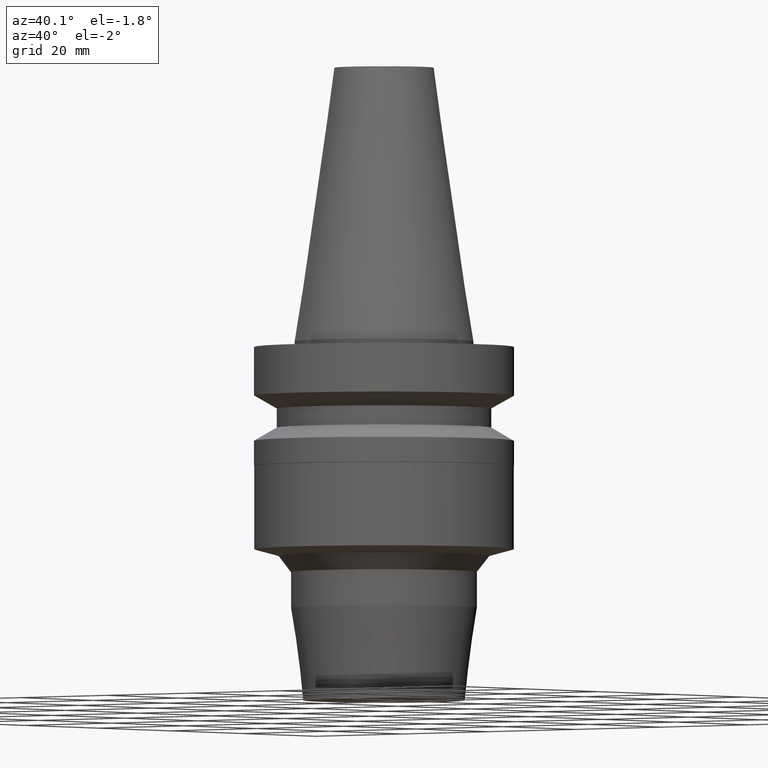
[diagram: clean part render]
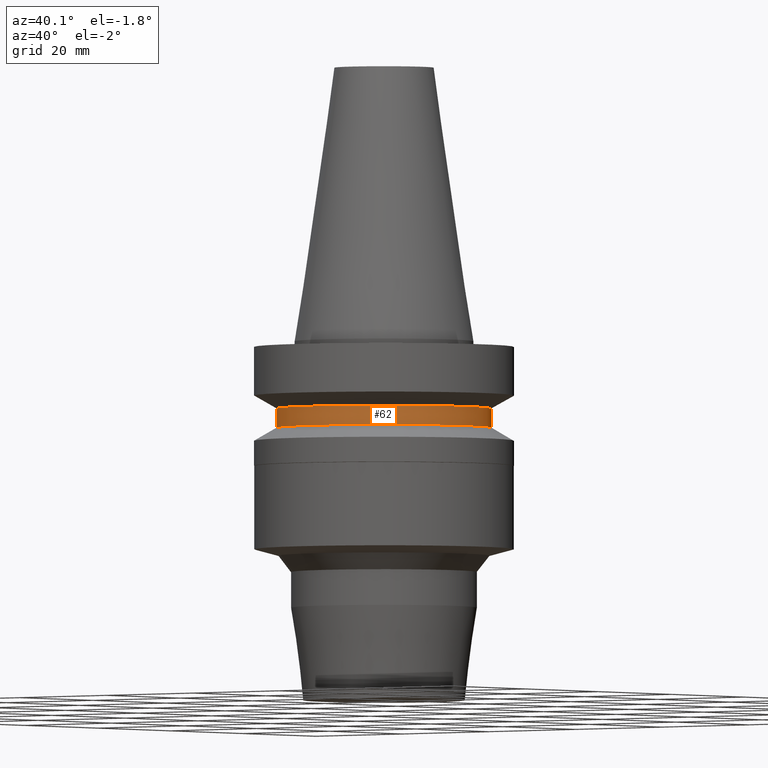
[diagram: same view with one face highlighted and labeled with its STEP entity id]
A machine part, auxiliary view. The second image highlights one B-rep face of the part: STEP entity #62.
In plain terms, the highlighted cylindrical surface (bore or boss wall) has radius 19 mm, axis along (0, 0, -1).
Its self-contained STEP definition (entity closure, byte-faithful):
#62=ADVANCED_FACE('Unnamed[1]',(#162,#163),#164,.T.);
#82=EDGE_CURVE('Unnamed[1]',#192,#192,#193,.T.);
#118=EDGE_CURVE('Unnamed[1]',#250,#250,#251,.T.);
#162=FACE_BOUND('',#297,.T.);
#163=FACE_BOUND('',#298,.T.);
#164=CYLINDRICAL_SURFACE('',#299,19.0);
#192=VERTEX_POINT('',#334);
#193=CIRCLE('',#335,19.0);
#250=VERTEX_POINT('',#406);
#251=CIRCLE('',#407,19.0);
#297=EDGE_LOOP('',(#452));
#298=EDGE_LOOP('',(#453));
#299=AXIS2_PLACEMENT_3D('',#454,#455,#456);
#334=CARTESIAN_POINT('',(7.29240495619202E-016,19.0,-11.90940108));
#335=AXIS2_PLACEMENT_3D('',#484,#485,#486);
#406=CARTESIAN_POINT('',(9.36279151221199E-016,19.0,-15.29059892));
#407=AXIS2_PLACEMENT_3D('',#550,#551,#552);
#452=ORIENTED_EDGE('',*,*,#118,.F.);
#453=ORIENTED_EDGE('',*,*,#82,.T.);
#454=CARTESIAN_POINT('',(8.32759823420201E-016,1.6655196468404E-015,-13.6));
#455=DIRECTION('',(6.12323399573677E-017,1.22464679914735E-016,-1.0));
#456=DIRECTION('',(-1.23259516440783E-032,1.0,1.22464679914735E-016));
#484=CARTESIAN_POINT('',(7.29240495619202E-016,1.4584809912384E-015,-11.90940108));
#485=DIRECTION('',(6.12323399573677E-017,1.22464679914735E-016,-1.0));
#486=DIRECTION('',(-1.23259516440783E-032,1.0,1.22464679914735E-016));
#550=CARTESIAN_POINT('',(9.36279151221199E-016,1.8725583024424E-015,-15.29059892));
#551=DIRECTION('',(6.12323399573677E-017,1.22464679914735E-016,-1.0));
#552=DIRECTION('',(-1.23259516440783E-032,1.0,1.22464679914735E-016));